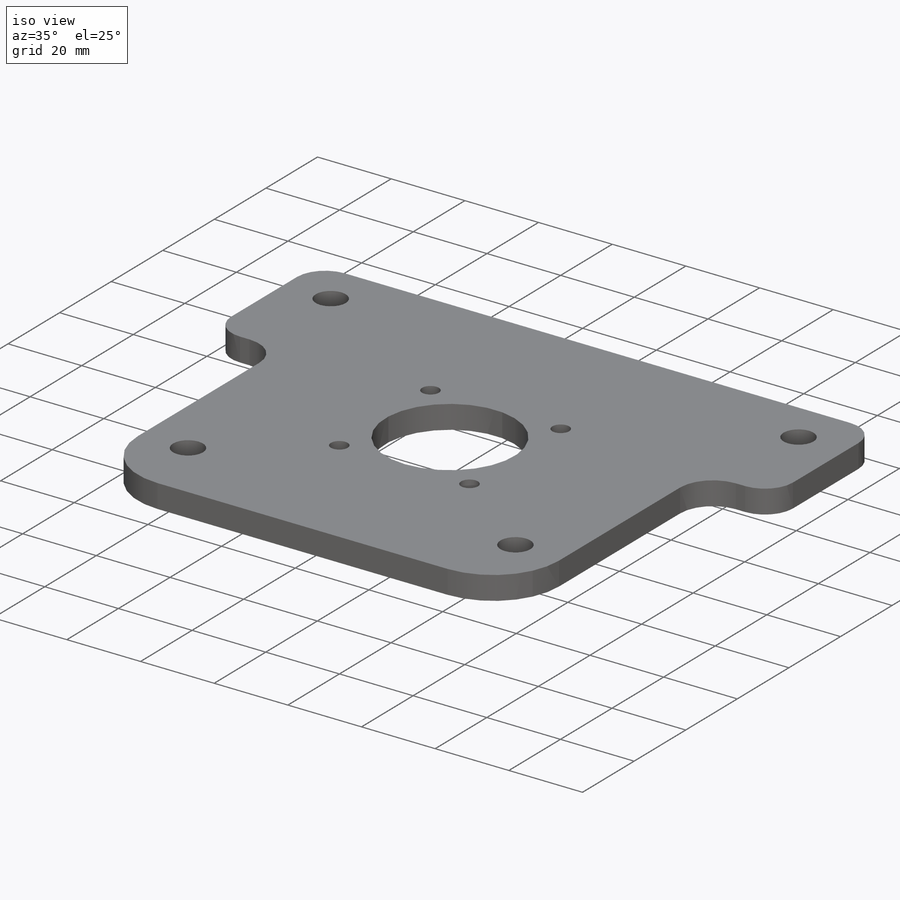
[diagram: iso view]
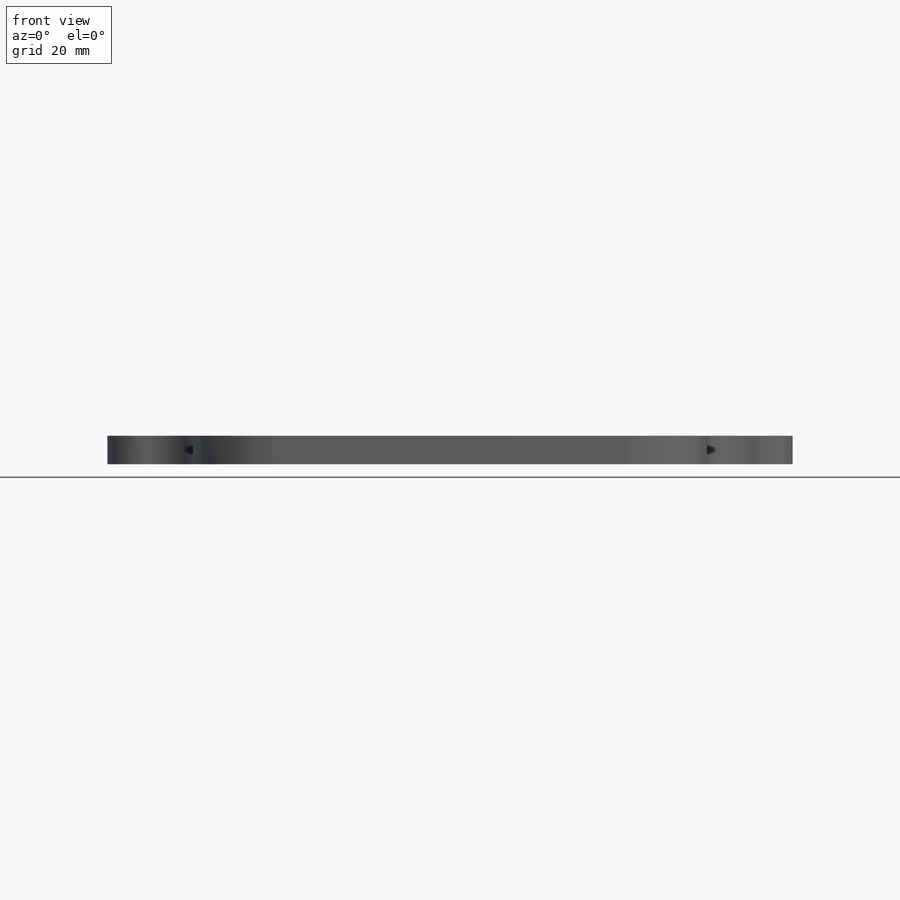
[diagram: front view]
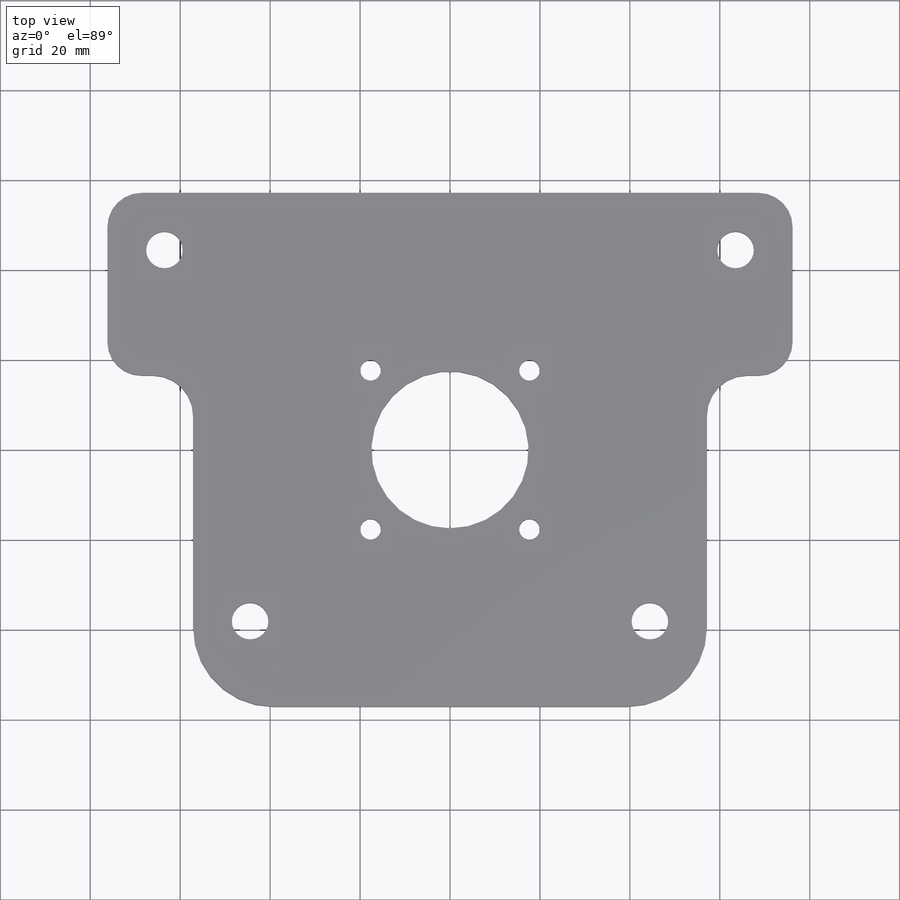
[diagram: top view]
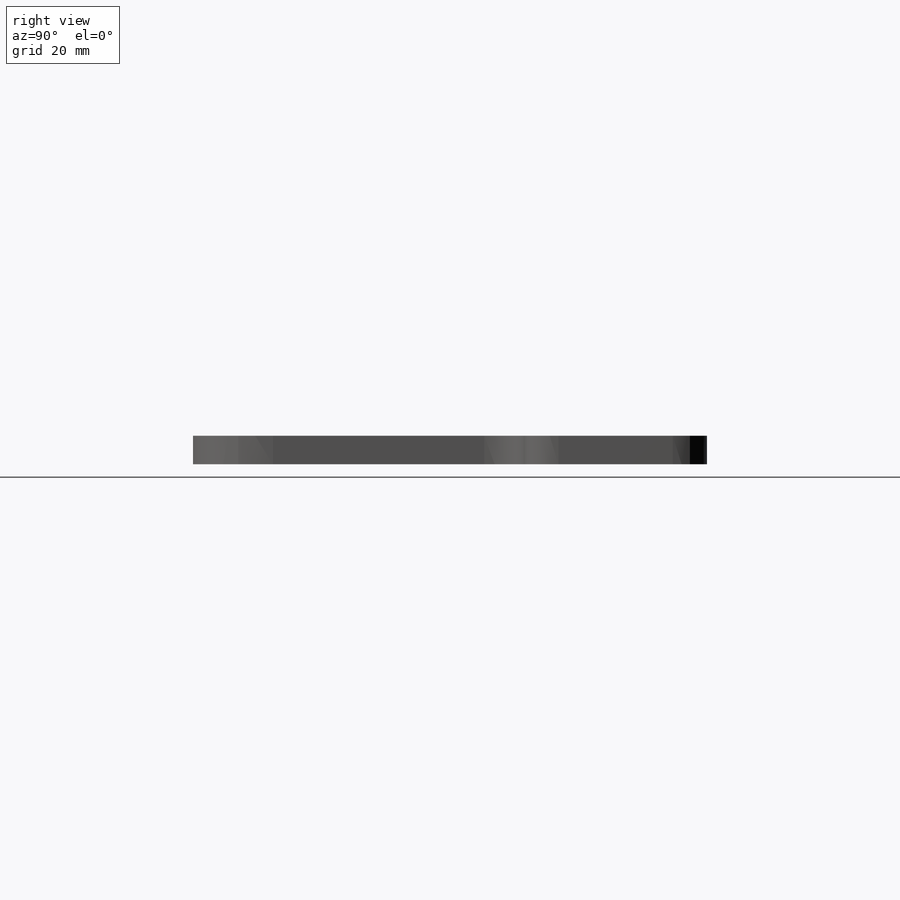
[diagram: right view]
SOLIDWORKS PART (.sldprt)
format: sldprt  version: not decoded by parser v0  size: 210,944 bytes
history: native  units: mm
features: sketch x3, fillet x3, extrude x2, material x1, cut_extrude x1 (+12 scaffold rows collapsed)
feature tree (22):
  scaffold x12  (default folders/planes/origin — collapsed)
  material  "Material <not specified>"
  sketch  "Sketch1"  dims[D1=114.3mm]
  extrude  "Boss-Extrude1"  Depth=6.35mm
  sketch  "Sketch3"  dims[D1=40.64mm D2=19.05mm]
  extrude  "Boss-Extrude2"  [1 undecoded]
  sketch  "Sketch2"  dims[c1.D2=8.128mm c1.D3=34.925mm c1.D4=4.572mm c1.D5=34.925mm c1.D1=127.0mm c2.D5=50.0mm c2.D6=47.625mm c2.D7=~134.703842mm c3.D6=44.45mm c3.D7=38.1mm c3.D8=88.9mm c3.D5=50.0mm]
  cut_extrude  "Cut-Extrude1"  [1 undecoded]
  fillet  "Fillet1"  Radius=8.89mm
  fillet  "Fillet2"  Radius=17.78mm
  fillet  "Fillet3"  Radius=7.62mm
decode coverage: 7 of 9 modeling features carry decoded parameters
note: ~ marks probable driven/reference dimensions
note: 2 parameter values undecoded
note: suppression state not decoded; provenance and decode notes live in map.json
